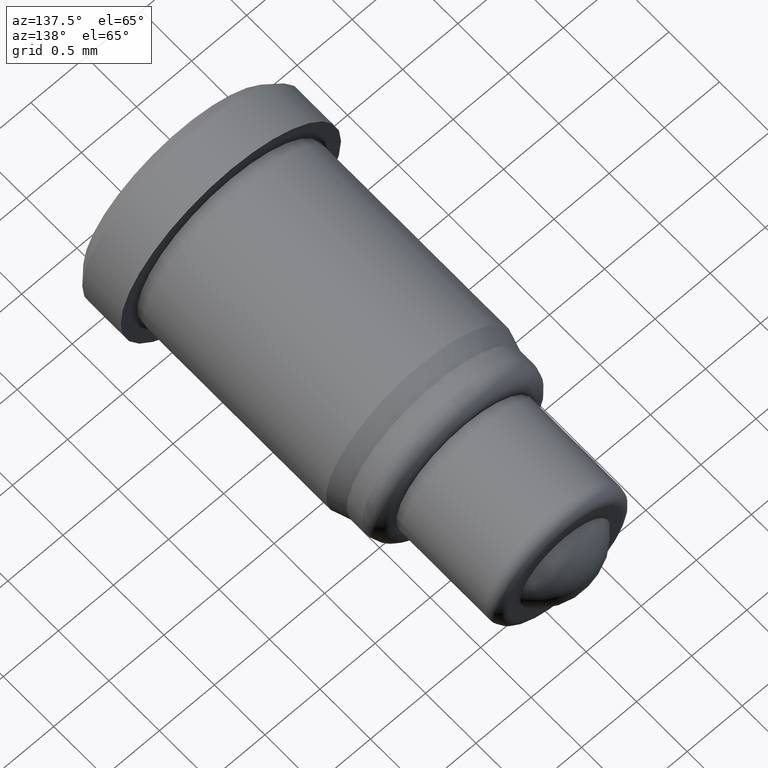
[diagram: clean part render]
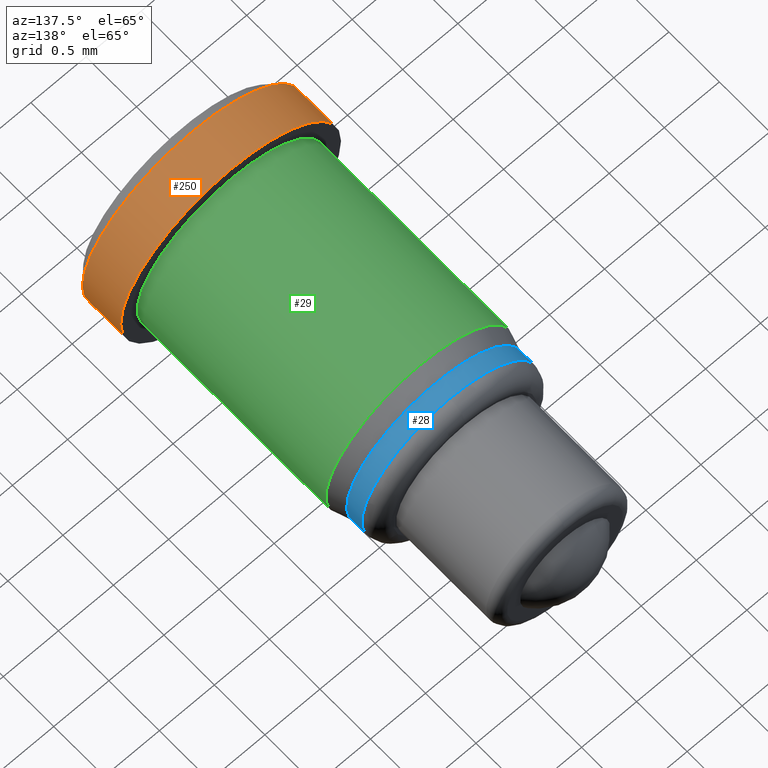
[diagram: same view with three faces highlighted in distinct colors, each labeled with its STEP entity id]
A machine part, auxiliary view with three faces highlighted in distinct colors.
Their STEP definitions:

[orange] entity #250 — the highlighted cylindrical surface (bore or boss wall) has radius 1 mm, axis along (-0, -1, -0).
#30 = FACE_OUTER_BOUND ( 'NONE', #208, .T. ) ;
#38 = AXIS2_PLACEMENT_3D ( 'NONE', #45, #46, #50 ) ;
#45 = CARTESIAN_POINT ( 'NONE',  ( 0.0000000000000000000, 0.4805753553701865299, 0.0000000000000000000 ) ) ;
#46 = DIRECTION ( 'NONE',  ( -0.0000000000000000000, -1.000000000000000000, -0.0000000000000000000 ) ) ;
#49 = EDGE_CURVE ( 'NONE', #104, #104, #93, .T. ) ;
#50 = DIRECTION ( 'NONE',  ( 0.0000000000000000000, 0.0000000000000000000, -1.000000000000000000 ) ) ;
#55 = ORIENTED_EDGE ( 'NONE', *, *, #49, .T. ) ;
#83 = DIRECTION ( 'NONE',  ( 0.0000000000000000000, 0.0000000000000000000, -1.000000000000000000 ) ) ;
#93 = CIRCLE ( 'NONE', #38, 1.000000000000000000 ) ;
#101 = CARTESIAN_POINT ( 'NONE',  ( 0.0000000000000000000, 0.1000000000000002137, 0.0000000000000000000 ) ) ;
#102 = VERTEX_POINT ( 'NONE', #136 ) ;
#104 = VERTEX_POINT ( 'NONE', #292 ) ;
#123 = DIRECTION ( 'NONE',  ( 0.0000000000000000000, 0.0000000000000000000, -1.000000000000000000 ) ) ;
#136 = CARTESIAN_POINT ( 'NONE',  ( 0.0000000000000000000, 0.1000000000000002137, -1.000000000000000000 ) ) ;
#180 = CYLINDRICAL_SURFACE ( 'NONE', #225, 1.000000000000000000 ) ;
#185 = EDGE_CURVE ( 'NONE', #102, #102, #276, .T. ) ;
#190 = DIRECTION ( 'NONE',  ( -0.0000000000000000000, -1.000000000000000000, -0.0000000000000000000 ) ) ;
#195 = CARTESIAN_POINT ( 'NONE',  ( 0.0000000000000000000, 0.0000000000000000000, 0.0000000000000000000 ) ) ;
#208 = EDGE_LOOP ( 'NONE', ( #297 ) ) ;
#225 = AXIS2_PLACEMENT_3D ( 'NONE', #195, #190, #123 ) ;
#236 = DIRECTION ( 'NONE',  ( 0.0000000000000000000, 1.000000000000000000, 0.0000000000000000000 ) ) ;
#239 = AXIS2_PLACEMENT_3D ( 'NONE', #101, #236, #83 ) ;
#250 = ADVANCED_FACE ( 'NONE', ( #30, #263 ), #180, .T. ) ;
#263 = FACE_OUTER_BOUND ( 'NONE', #277, .T. ) ;
#276 = CIRCLE ( 'NONE', #239, 1.000000000000000000 ) ;
#277 = EDGE_LOOP ( 'NONE', ( #55 ) ) ;
#292 = CARTESIAN_POINT ( 'NONE',  ( 0.0000000000000000000, 0.4805753553701865299, -1.000000000000000000 ) ) ;
#297 = ORIENTED_EDGE ( 'NONE', *, *, #185, .T. ) ;

[blue] entity #28 — the highlighted cylindrical surface (bore or boss wall) has radius 0.8 mm, axis along (-0, -1, -0).
#5 = ORIENTED_EDGE ( 'NONE', *, *, #127, .F. ) ;
#21 = VERTEX_POINT ( 'NONE', #159 ) ;
#22 = DIRECTION ( 'NONE',  ( 0.0000000000000000000, 0.0000000000000000000, -1.000000000000000000 ) ) ;
#28 = ADVANCED_FACE ( 'NONE', ( #272, #200 ), #85, .T. ) ;
#35 = AXIS2_PLACEMENT_3D ( 'NONE', #75, #181, #22 ) ;
#59 = EDGE_LOOP ( 'NONE', ( #5 ) ) ;
#60 = DIRECTION ( 'NONE',  ( 0.0000000000000000000, 0.0000000000000000000, 1.000000000000000000 ) ) ;
#75 = CARTESIAN_POINT ( 'NONE',  ( 0.0000000000000000000, 0.0000000000000000000, 0.0000000000000000000 ) ) ;
#84 = CARTESIAN_POINT ( 'NONE',  ( 0.0000000000000000000, 2.649999999999999911, 0.0000000000000000000 ) ) ;
#85 = CYLINDRICAL_SURFACE ( 'NONE', #35, 0.7999999999999999334 ) ;
#95 = CIRCLE ( 'NONE', #246, 0.7999999999999999334 ) ;
#108 = CIRCLE ( 'NONE', #256, 0.8000000000000000444 ) ;
#109 = CARTESIAN_POINT ( 'NONE',  ( 0.0000000000000000000, 2.500000000000000000, -0.8000000000000000444 ) ) ;
#124 = ORIENTED_EDGE ( 'NONE', *, *, #158, .T. ) ;
#126 = DIRECTION ( 'NONE',  ( 0.0000000000000000000, 0.0000000000000000000, -1.000000000000000000 ) ) ;
#127 = EDGE_CURVE ( 'NONE', #207, #207, #108, .T. ) ;
#147 = CARTESIAN_POINT ( 'NONE',  ( 0.0000000000000000000, 2.500000000000000000, 0.0000000000000000000 ) ) ;
#158 = EDGE_CURVE ( 'NONE', #21, #21, #95, .T. ) ;
#159 = CARTESIAN_POINT ( 'NONE',  ( 0.0000000000000000000, 2.649999999999999911, 0.7999999999999999334 ) ) ;
#181 = DIRECTION ( 'NONE',  ( -0.0000000000000000000, -1.000000000000000000, -0.0000000000000000000 ) ) ;
#200 = FACE_OUTER_BOUND ( 'NONE', #59, .T. ) ;
#207 = VERTEX_POINT ( 'NONE', #109 ) ;
#211 = DIRECTION ( 'NONE',  ( -0.0000000000000000000, -1.000000000000000000, -0.0000000000000000000 ) ) ;
#231 = EDGE_LOOP ( 'NONE', ( #124 ) ) ;
#246 = AXIS2_PLACEMENT_3D ( 'NONE', #84, #211, #60 ) ;
#256 = AXIS2_PLACEMENT_3D ( 'NONE', #147, #286, #126 ) ;
#272 = FACE_OUTER_BOUND ( 'NONE', #231, .T. ) ;
#286 = DIRECTION ( 'NONE',  ( -0.0000000000000000000, -1.000000000000000000, -0.0000000000000000000 ) ) ;

[green] entity #29 — the highlighted cylindrical surface (bore or boss wall) has radius 0.85 mm, axis along (-0, -1, -0).
#10 = DIRECTION ( 'NONE',  ( -0.0000000000000000000, -1.000000000000000000, -0.0000000000000000000 ) ) ;
#11 = CARTESIAN_POINT ( 'NONE',  ( 0.0000000000000000000, 0.0000000000000000000, 0.0000000000000000000 ) ) ;
#17 = DIRECTION ( 'NONE',  ( -0.0000000000000000000, -1.000000000000000000, -0.0000000000000000000 ) ) ;
#18 = FACE_OUTER_BOUND ( 'NONE', #72, .T. ) ;
#20 = CIRCLE ( 'NONE', #238, 0.8499999999999998668 ) ;
#23 = ORIENTED_EDGE ( 'NONE', *, *, #232, .T. ) ;
#26 = FACE_OUTER_BOUND ( 'NONE', #168, .T. ) ;
#27 = AXIS2_PLACEMENT_3D ( 'NONE', #11, #17, #71 ) ;
#29 = ADVANCED_FACE ( 'NONE', ( #26, #18 ), #39, .T. ) ;
#37 = CIRCLE ( 'NONE', #247, 0.8500000000000000888 ) ;
#39 = CYLINDRICAL_SURFACE ( 'NONE', #27, 0.8499999999999999778 ) ;
#43 = VERTEX_POINT ( 'NONE', #295 ) ;
#47 = CARTESIAN_POINT ( 'NONE',  ( 0.0000000000000000000, 0.4805753553701865299, -0.8500000000000000888 ) ) ;
#71 = DIRECTION ( 'NONE',  ( 0.0000000000000000000, 0.0000000000000000000, -1.000000000000000000 ) ) ;
#72 = EDGE_LOOP ( 'NONE', ( #82 ) ) ;
#82 = ORIENTED_EDGE ( 'NONE', *, *, #154, .F. ) ;
#92 = CARTESIAN_POINT ( 'NONE',  ( 0.0000000000000000000, 2.350000000000000089, 0.0000000000000000000 ) ) ;
#125 = DIRECTION ( 'NONE',  ( -0.0000000000000000000, -1.000000000000000000, -0.0000000000000000000 ) ) ;
#141 = VERTEX_POINT ( 'NONE', #47 ) ;
#154 = EDGE_CURVE ( 'NONE', #141, #141, #37, .T. ) ;
#168 = EDGE_LOOP ( 'NONE', ( #23 ) ) ;
#174 = DIRECTION ( 'NONE',  ( 0.0000000000000000000, 0.0000000000000000000, -1.000000000000000000 ) ) ;
#232 = EDGE_CURVE ( 'NONE', #43, #43, #20, .T. ) ;
#238 = AXIS2_PLACEMENT_3D ( 'NONE', #92, #10, #174 ) ;
#247 = AXIS2_PLACEMENT_3D ( 'NONE', #285, #125, #258 ) ;
#258 = DIRECTION ( 'NONE',  ( 0.0000000000000000000, 0.0000000000000000000, -1.000000000000000000 ) ) ;
#285 = CARTESIAN_POINT ( 'NONE',  ( 0.0000000000000000000, 0.4805753553701865299, 0.0000000000000000000 ) ) ;
#295 = CARTESIAN_POINT ( 'NONE',  ( 0.0000000000000000000, 2.350000000000000089, -0.8499999999999998668 ) ) ;